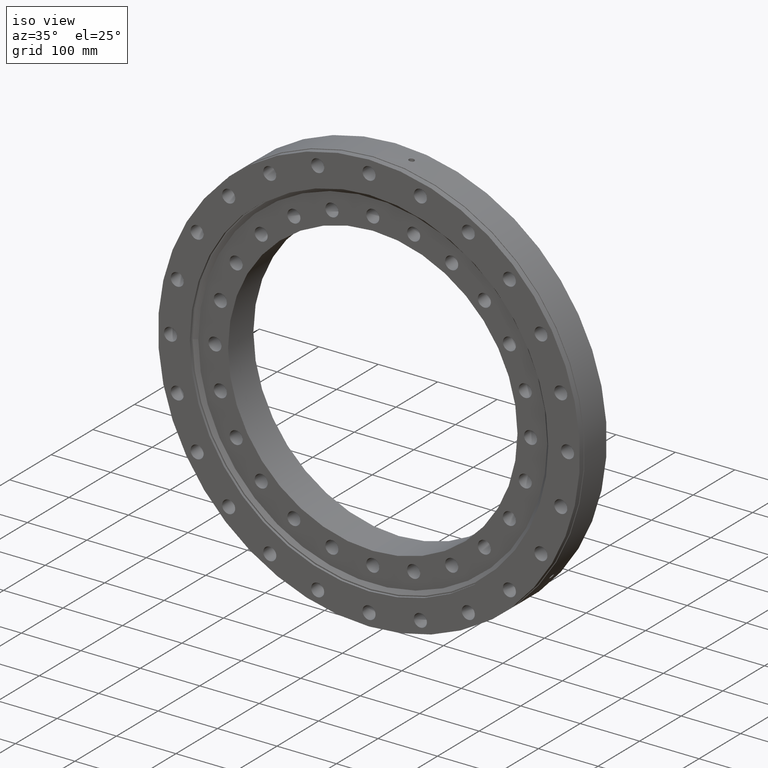
[diagram: clean part render]
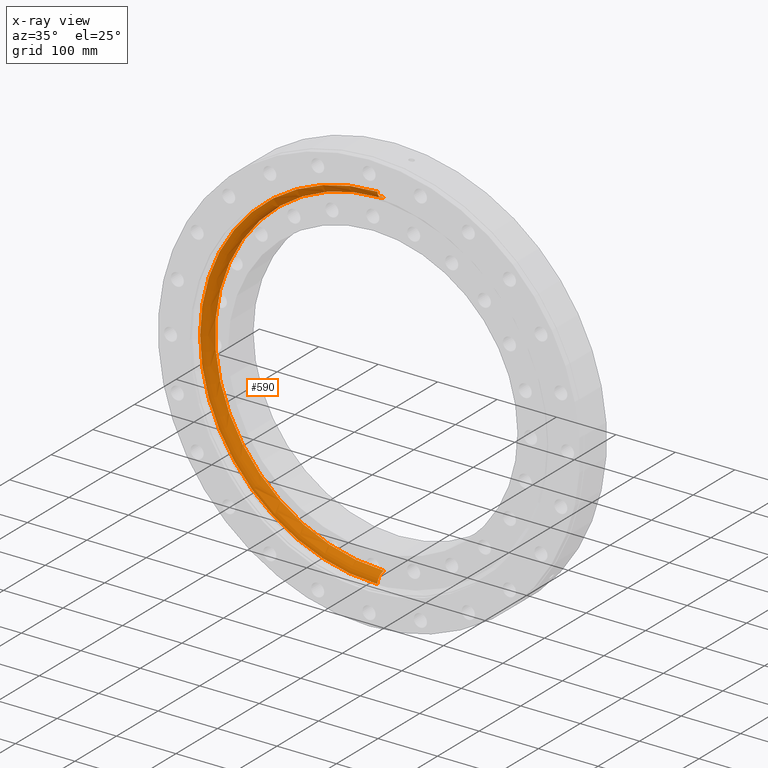
[diagram: x-ray — body ghosted, one internal face saturated and labeled with its STEP entity id]
A machine part, iso view, then the same camera in x-ray: the body is ghosted and one INTERNAL B-rep face — a face not visible from any outside direction — is saturated and labeled: STEP entity #590.
In plain terms, the highlighted toroidal blend (fillet) surface has major radius 300 mm and minor (blend) radius 15.875 mm.
Its self-contained STEP definition (entity closure, byte-faithful):
#469 = CIRCLE ( 'NONE', #3953, 15.87500000000008300 ) ;
#497 = AXIS2_PLACEMENT_3D ( 'NONE', #5776, #5281, #4961 ) ;
#590 = ADVANCED_FACE ( 'NONE', ( #5566 ), #5326, .F. ) ;
#766 = CARTESIAN_POINT ( 'NONE',  ( 3.654499129505600900E-014, -15.79542556406779500, -298.4125000000004800 ) ) ;
#994 = DIRECTION ( 'NONE',  ( 0.0000000000000000000, 0.0000000000000000000, 1.000000000000000000 ) ) ;
#1263 = ORIENTED_EDGE ( 'NONE', *, *, #5155, .T. ) ;
#1350 = CIRCLE ( 'NONE', #5736, 284.1249999999998900 ) ;
#1456 = EDGE_CURVE ( 'NONE', #4827, #2795, #3242, .T. ) ;
#1457 = DIRECTION ( 'NONE',  ( 0.0000000000000000000, 2.727064569436389700E-017, 1.000000000000000000 ) ) ;
#1709 = EDGE_CURVE ( 'NONE', #2035, #2795, #1823, .T. ) ;
#1823 = CIRCLE ( 'NONE', #1833, 15.87500000000008300 ) ;
#1833 = AXIS2_PLACEMENT_3D ( 'NONE', #5853, #5780, #994 ) ;
#2035 = VERTEX_POINT ( 'NONE', #3077 ) ;
#2209 = DIRECTION ( 'NONE',  ( -0.0000000000000000000, 1.000000000000000000, -2.727064569436389700E-017 ) ) ;
#2262 = ORIENTED_EDGE ( 'NONE', *, *, #1456, .T. ) ;
#2463 = VERTEX_POINT ( 'NONE', #2751 ) ;
#2751 = CARTESIAN_POINT ( 'NONE',  ( 3.479527718077415900E-014, -8.883020697553658300E-015, -284.1249999999998900 ) ) ;
#2795 = VERTEX_POINT ( 'NONE', #4732 ) ;
#2803 = ORIENTED_EDGE ( 'NONE', *, *, #1709, .F. ) ;
#2986 = CARTESIAN_POINT ( 'NONE',  ( 0.0000000000000000000, -6.938893903907228400E-015, 0.0000000000000000000 ) ) ;
#3077 = CARTESIAN_POINT ( 'NONE',  ( 0.0000000000000000000, -8.883020697553669400E-015, 284.1249999999998900 ) ) ;
#3242 = CIRCLE ( 'NONE', #497, 298.4125000000000200 ) ;
#3392 = CARTESIAN_POINT ( 'NONE',  ( 3.673940397442059500E-014, -1.512008761221639700E-014, -300.0000000000000000 ) ) ;
#3521 = EDGE_LOOP ( 'NONE', ( #4610, #1263, #2262, #2803 ) ) ;
#3953 = AXIS2_PLACEMENT_3D ( 'NONE', #3392, #4688, #4590 ) ;
#4590 = DIRECTION ( 'NONE',  ( 1.224646799147354700E-016, 0.0000000000000000000, -1.000000000000000000 ) ) ;
#4610 = ORIENTED_EDGE ( 'NONE', *, *, #5784, .F. ) ;
#4688 = DIRECTION ( 'NONE',  ( 1.000000000000000000, 3.339690896028429500E-033, 1.224646799147353200E-016 ) ) ;
#4732 = CARTESIAN_POINT ( 'NONE',  ( 0.0000000000000000000, -15.79542556406778100, 298.4125000000004800 ) ) ;
#4827 = VERTEX_POINT ( 'NONE', #766 ) ;
#4961 = DIRECTION ( 'NONE',  ( 0.0000000000000000000, 2.325269184068102900E-017, 1.000000000000000000 ) ) ;
#5135 = AXIS2_PLACEMENT_3D ( 'NONE', #2986, #2209, #1457 ) ;
#5155 = EDGE_CURVE ( 'NONE', #2463, #4827, #469, .T. ) ;
#5271 = DIRECTION ( 'NONE',  ( 0.0000000000000000000, 2.727064569436389700E-017, 1.000000000000000000 ) ) ;
#5281 = DIRECTION ( 'NONE',  ( -0.0000000000000000000, 1.000000000000000000, -2.727064569436389700E-017 ) ) ;
#5326 = TOROIDAL_SURFACE ( 'NONE', #5135, 300.0000000000000000, 15.87500000000009400 ) ;
#5566 = FACE_OUTER_BOUND ( 'NONE', #3521, .T. ) ;
#5724 = DIRECTION ( 'NONE',  ( -0.0000000000000000000, 1.000000000000000000, -2.727064569436389700E-017 ) ) ;
#5732 = CARTESIAN_POINT ( 'NONE',  ( 0.0000000000000000000, -8.883020697553663100E-015, 5.301759297445163000E-032 ) ) ;
#5736 = AXIS2_PLACEMENT_3D ( 'NONE', #5732, #5724, #5271 ) ;
#5776 = CARTESIAN_POINT ( 'NONE',  ( 0.0000000000000000000, -15.79542556406778800, -4.154323094305208700E-016 ) ) ;
#5780 = DIRECTION ( 'NONE',  ( -1.000000000000000000, 0.0000000000000000000, 0.0000000000000000000 ) ) ;
#5784 = EDGE_CURVE ( 'NONE', #2463, #2035, #1350, .T. ) ;
#5853 = CARTESIAN_POINT ( 'NONE',  ( 0.0000000000000000000, 1.242299804401940000E-015, 300.0000000000000000 ) ) ;